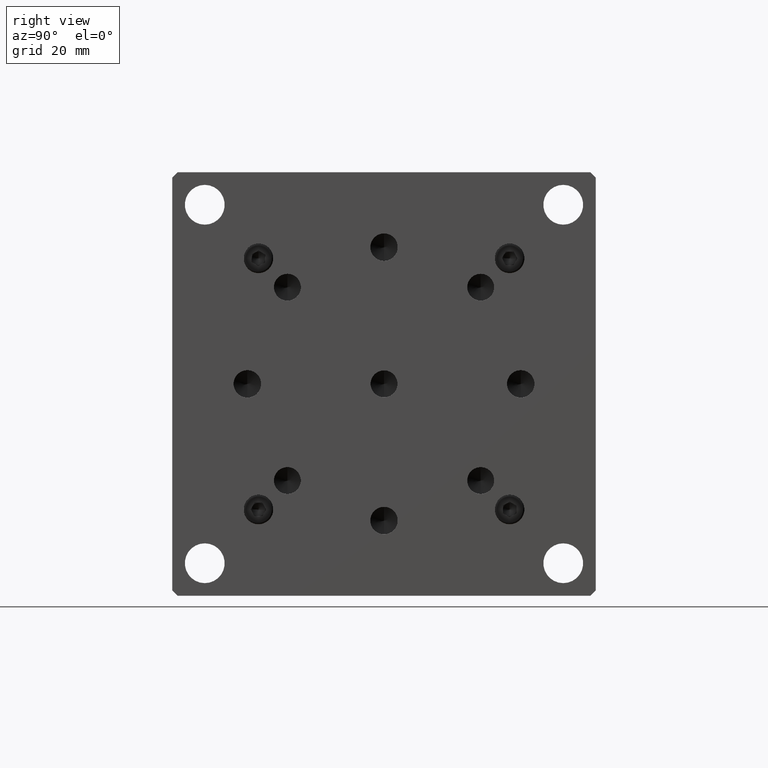
[diagram: clean part render]
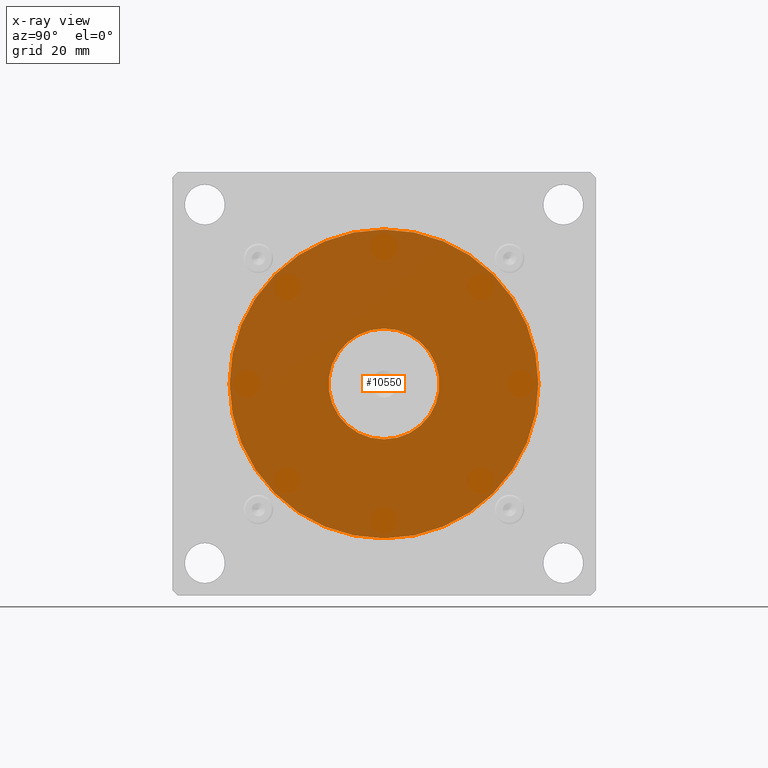
[diagram: x-ray — body ghosted, one internal face saturated and labeled with its STEP entity id]
A machine part, right view, then the same camera in x-ray: the body is ghosted and one INTERNAL B-rep face — a face not visible from any outside direction — is saturated and labeled: STEP entity #10550.
In plain terms, the highlighted planar face has unit normal (-1, -0, 0).
Its self-contained STEP definition (entity closure, byte-faithful):
#2 = CARTESIAN_POINT ( 'NONE',  ( -18.00000000000000000, -118.0500000000000000, 1.786572885683119900E-014 ) ) ;
#358 = CARTESIAN_POINT ( 'NONE',  ( -18.00000000000000000, -118.0500000000000000, 1.786572885683119900E-014 ) ) ;
#732 = AXIS2_PLACEMENT_3D ( 'NONE', #358, #6269, #1233 ) ;
#793 = CIRCLE ( 'NONE', #1493, 10.30000000000000100 ) ;
#866 = CARTESIAN_POINT ( 'NONE',  ( -18.00000000000000000, -118.0500000000000000, -28.69999999999998200 ) ) ;
#892 = VERTEX_POINT ( 'NONE', #866 ) ;
#913 = PLANE ( 'NONE',  #8144 ) ;
#1222 = EDGE_CURVE ( 'NONE', #10780, #7923, #9364, .T. ) ;
#1233 = DIRECTION ( 'NONE',  ( 0.0000000000000000000, 0.0000000000000000000, -1.000000000000000000 ) ) ;
#1493 = AXIS2_PLACEMENT_3D ( 'NONE', #3018, #8784, #3867 ) ;
#1539 = FACE_BOUND ( 'NONE', #2619, .T. ) ;
#2081 = CIRCLE ( 'NONE', #732, 28.69999999999999900 ) ;
#2409 = VERTEX_POINT ( 'NONE', #9956 ) ;
#2418 = CIRCLE ( 'NONE', #6731, 28.69999999999999900 ) ;
#2619 = EDGE_LOOP ( 'NONE', ( #9396, #10753 ) ) ;
#2696 = CARTESIAN_POINT ( 'NONE',  ( -18.00000000000000000, -118.0500000000000000, 1.786572885683119900E-014 ) ) ;
#2931 = EDGE_CURVE ( 'NONE', #892, #2409, #2081, .T. ) ;
#3018 = CARTESIAN_POINT ( 'NONE',  ( -18.00000000000000000, -118.0500000000000000, 1.786572885683119900E-014 ) ) ;
#3547 = DIRECTION ( 'NONE',  ( 0.0000000000000000000, -1.110223024625155900E-016, -1.000000000000000000 ) ) ;
#3811 = FACE_OUTER_BOUND ( 'NONE', #9268, .T. ) ;
#3867 = DIRECTION ( 'NONE',  ( 0.0000000000000000000, 0.0000000000000000000, -1.000000000000000000 ) ) ;
#3989 = CARTESIAN_POINT ( 'NONE',  ( -18.00000000000000000, -118.0500000000000000, 1.786572885683119900E-014 ) ) ;
#4628 = AXIS2_PLACEMENT_3D ( 'NONE', #2, #10049, #5142 ) ;
#4841 = DIRECTION ( 'NONE',  ( 0.0000000000000000000, 0.0000000000000000000, -1.000000000000000000 ) ) ;
#5039 = ORIENTED_EDGE ( 'NONE', *, *, #2931, .T. ) ;
#5142 = DIRECTION ( 'NONE',  ( 0.0000000000000000000, 0.0000000000000000000, -1.000000000000000000 ) ) ;
#5824 = ORIENTED_EDGE ( 'NONE', *, *, #7462, .T. ) ;
#6269 = DIRECTION ( 'NONE',  ( -1.000000000000000000, 0.0000000000000000000, 0.0000000000000000000 ) ) ;
#6731 = AXIS2_PLACEMENT_3D ( 'NONE', #3989, #9759, #4841 ) ;
#7462 = EDGE_CURVE ( 'NONE', #2409, #892, #2418, .T. ) ;
#7862 = CARTESIAN_POINT ( 'NONE',  ( -18.00000000000000000, -118.0500000000000000, -10.29999999999997600 ) ) ;
#7923 = VERTEX_POINT ( 'NONE', #10134 ) ;
#8144 = AXIS2_PLACEMENT_3D ( 'NONE', #2696, #8473, #3547 ) ;
#8436 = EDGE_CURVE ( 'NONE', #7923, #10780, #793, .T. ) ;
#8473 = DIRECTION ( 'NONE',  ( -1.000000000000000000, -0.0000000000000000000, 0.0000000000000000000 ) ) ;
#8784 = DIRECTION ( 'NONE',  ( 1.000000000000000000, -0.0000000000000000000, -0.0000000000000000000 ) ) ;
#9268 = EDGE_LOOP ( 'NONE', ( #5824, #5039 ) ) ;
#9364 = CIRCLE ( 'NONE', #4628, 10.30000000000000100 ) ;
#9396 = ORIENTED_EDGE ( 'NONE', *, *, #1222, .T. ) ;
#9759 = DIRECTION ( 'NONE',  ( -1.000000000000000000, 0.0000000000000000000, 0.0000000000000000000 ) ) ;
#9956 = CARTESIAN_POINT ( 'NONE',  ( -18.00000000000000000, -118.0500000000000000, 28.70000000000001700 ) ) ;
#10049 = DIRECTION ( 'NONE',  ( 1.000000000000000000, -0.0000000000000000000, -0.0000000000000000000 ) ) ;
#10134 = CARTESIAN_POINT ( 'NONE',  ( -18.00000000000000000, -118.0500000000000000, 10.30000000000001100 ) ) ;
#10550 = ADVANCED_FACE ( 'NONE', ( #3811, #1539 ), #913, .T. ) ;
#10753 = ORIENTED_EDGE ( 'NONE', *, *, #8436, .T. ) ;
#10780 = VERTEX_POINT ( 'NONE', #7862 ) ;